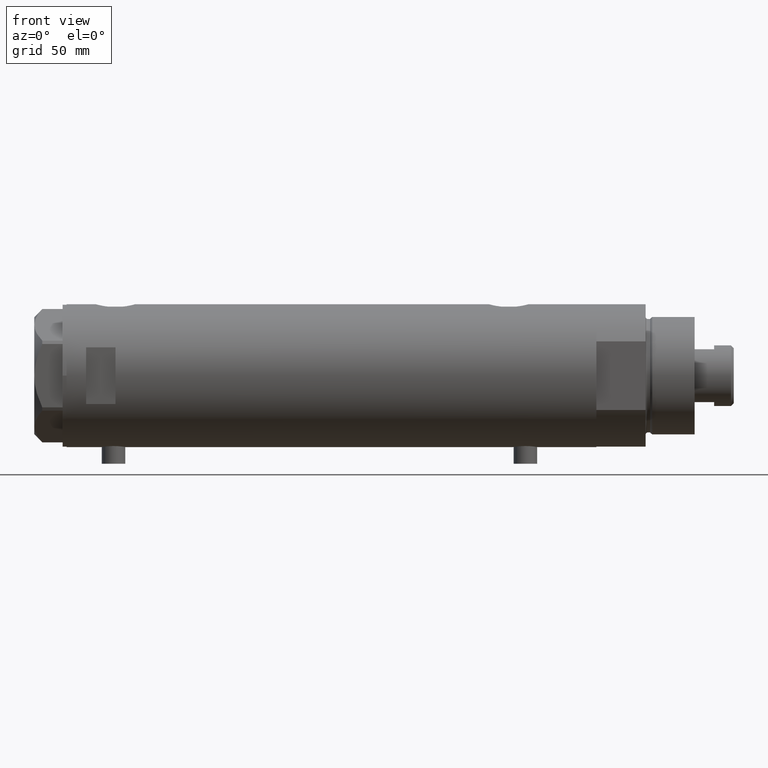
[diagram: clean part render]
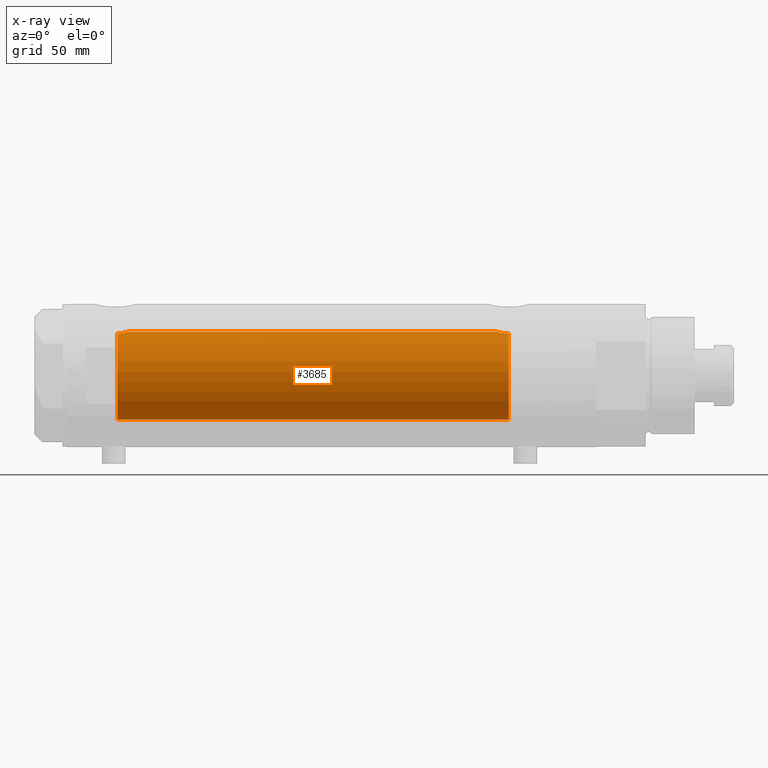
[diagram: x-ray — body ghosted, one internal face saturated and labeled with its STEP entity id]
A machine part, front view, then the same camera in x-ray: the body is ghosted and one INTERNAL B-rep face — a face not visible from any outside direction — is saturated and labeled: STEP entity #3685.
In plain terms, the highlighted cylindrical surface (partial cylindrical patch) has radius 22.5 mm, axis along (1, 0, -0).
Its self-contained STEP definition (entity closure, byte-faithful):
#32 = CARTESIAN_POINT ( 'NONE',  ( 21.53958216864941733, -6.503568251352485952, 109.3999999999999915 ) ) ;
#66 = DIRECTION ( 'NONE',  ( -1.000000000000000000, 0.000000000000000000, 0.000000000000000000 ) ) ;
#76 = CARTESIAN_POINT ( 'NONE',  ( 21.97180182460413889, -4.853116730831949610, 105.9398793933508642 ) ) ;
#137 = CARTESIAN_POINT ( 'NONE',  ( 21.53958216864941733, -6.503568251352485952, 109.3999999999999915 ) ) ;
#152 = LINE ( 'NONE', #3225, #1558 ) ;
#187 = CARTESIAN_POINT ( 'NONE',  ( -22.50000000000000355, 0.000000000000000000, -90.59999999999998010 ) ) ;
#244 = CARTESIAN_POINT ( 'NONE',  ( 0.000000000000000000, 0.000000000000000000, -90.59999999999998010 ) ) ;
#259 = CARTESIAN_POINT ( 'NONE',  ( 22.50000000000000355, 8.058593785575293352E-16, -84.01999999999998181 ) ) ;
#270 = DIRECTION ( 'NONE',  ( -0.000000000000000000, -0.000000000000000000, -1.000000000000000000 ) ) ;
#304 = CARTESIAN_POINT ( 'NONE',  ( 21.61760927586798431, -6.241696587716365485, -88.47279459237279298 ) ) ;
#370 = CARTESIAN_POINT ( 'NONE',  ( 21.80246547822149239, -5.562416037700062432, 106.8635862820582361 ) ) ;
#423 = CARTESIAN_POINT ( 'NONE',  ( 22.50000000000000355, 8.058593785575293352E-16, -84.01999999999998181 ) ) ;
#429 = DIRECTION ( 'NONE',  ( -0.000000000000000000, -0.000000000000000000, -1.000000000000000000 ) ) ;
#511 = VERTEX_POINT ( 'NONE', #137 ) ;
#594 = LINE ( 'NONE', #2627, #2563 ) ;
#622 = CARTESIAN_POINT ( 'NONE',  ( 22.25875518649490559, -3.305696985817205835, -84.89458010501985541 ) ) ;
#644 = DIRECTION ( 'NONE',  ( 0.000000000000000000, 0.000000000000000000, 1.000000000000000000 ) ) ;
#661 = CARTESIAN_POINT ( 'NONE',  ( 22.48448975507857384, -0.8627579744204254553, -84.07320172378659606 ) ) ;
#720 = ORIENTED_EDGE ( 'NONE', *, *, #3357, .F. ) ;
#747 = AXIS2_PLACEMENT_3D ( 'NONE', #244, #1992, #2282 ) ;
#838 = CIRCLE ( 'NONE', #4241, 22.50000000000000355 ) ;
#936 = DIRECTION ( 'NONE',  ( 1.000000000000000000, 0.000000000000000000, 0.000000000000000000 ) ) ;
#937 = CARTESIAN_POINT ( 'NONE',  ( 22.40278435593408091, -2.127100118045536892, -84.35850395174202276 ) ) ;
#955 = CARTESIAN_POINT ( 'NONE',  ( 21.71318796968428444, -5.899027407341884022, -87.67698536342957993 ) ) ;
#1003 = CARTESIAN_POINT ( 'NONE',  ( 22.43844456282249666, -1.716722304487073636, -84.23314599255652979 ) ) ;
#1024 = CARTESIAN_POINT ( 'NONE',  ( 21.65869182728109621, -6.096583454856811635, 107.8942047130795601 ) ) ;
#1046 = CARTESIAN_POINT ( 'NONE',  ( 21.70285280737213540, -5.939204755440065320, 107.5412343513558397 ) ) ;
#1060 = EDGE_CURVE ( 'NONE', #4130, #1711, #3133, .T. ) ;
#1135 = CARTESIAN_POINT ( 'NONE',  ( -22.50000000000000355, 0.000000000000000000, 109.3999999999999915 ) ) ;
#1207 = EDGE_CURVE ( 'NONE', #1555, #511, #2570, .T. ) ;
#1339 = CARTESIAN_POINT ( 'NONE',  ( 21.76737372098157763, -5.695831585513579043, -87.29847891606891608 ) ) ;
#1352 = AXIS2_PLACEMENT_3D ( 'NONE', #3166, #429, #66 ) ;
#1363 = CARTESIAN_POINT ( 'NONE',  ( 22.49690699366424695, -0.4310528819996864991, -84.03055249859411902 ) ) ;
#1367 = CARTESIAN_POINT ( 'NONE',  ( 22.50000000000000355, -0.3950131823107573270, 103.8200000000000074 ) ) ;
#1434 = CARTESIAN_POINT ( 'NONE',  ( 22.41838729966076826, -1.923945741267791609, 104.1045311859534195 ) ) ;
#1555 = VERTEX_POINT ( 'NONE', #2795 ) ;
#1558 = VECTOR ( 'NONE', #3995, 1000.000000000000000 ) ;
#1661 = VERTEX_POINT ( 'NONE', #1135 ) ;
#1696 = CARTESIAN_POINT ( 'NONE',  ( 22.44752031034920492, -1.547413406105163203, 104.0015621785797180 ) ) ;
#1711 = VERTEX_POINT ( 'NONE', #187 ) ;
#1723 = CARTESIAN_POINT ( 'NONE',  ( 22.03004750576872439, -4.584392313773037131, 105.6639649762145012 ) ) ;
#1770 = CYLINDRICAL_SURFACE ( 'NONE', #1352, 22.50000000000000355 ) ;
#1783 = CARTESIAN_POINT ( 'NONE',  ( 22.50000000000000355, 0.000000000000000000, 103.8199999999999932 ) ) ;
#1847 = VERTEX_POINT ( 'NONE', #423 ) ;
#1858 = ORIENTED_EDGE ( 'NONE', *, *, #2079, .T. ) ;
#1965 = CARTESIAN_POINT ( 'NONE',  ( 21.79602751566978824, -5.585535159907477620, -87.11520197735673321 ) ) ;
#1992 = DIRECTION ( 'NONE',  ( 0.000000000000000000, 0.000000000000000000, -1.000000000000000000 ) ) ;
#2012 = ORIENTED_EDGE ( 'NONE', *, *, #1060, .T. ) ;
#2051 = CARTESIAN_POINT ( 'NONE',  ( 21.85824266975972918, -5.341352339310155628, 106.5379574036161614 ) ) ;
#2079 = EDGE_CURVE ( 'NONE', #1555, #1847, #152, .T. ) ;
#2256 = CARTESIAN_POINT ( 'NONE',  ( 21.51635656889892800, -6.580000000000002736, -90.59999999999998010 ) ) ;
#2282 = DIRECTION ( 'NONE',  ( -1.000000000000000000, 0.000000000000000000, 0.000000000000000000 ) ) ;
#2389 = CARTESIAN_POINT ( 'NONE',  ( 21.55747828655794507, -6.444296957919021018, 109.0145250978095106 ) ) ;
#2404 = ORIENTED_EDGE ( 'NONE', *, *, #2422, .T. ) ;
#2422 = EDGE_CURVE ( 'NONE', #1661, #511, #838, .T. ) ;
#2479 = CARTESIAN_POINT ( 'NONE',  ( 22.11568811446340277, -4.143519122923664533, 105.2848050441608905 ) ) ;
#2563 = VECTOR ( 'NONE', #270, 1000.000000000000000 ) ;
#2570 = B_SPLINE_CURVE_WITH_KNOTS ( 'NONE', 3,
 ( #1783, #1367, #2820, #3149, #1696, #1434, #3512, #3808, #2800, #3445, #3177, #4177, #2479, #1723, #76, #2051, #370, #1046, #1024, #4224, #2389, #32 ),
 .UNSPECIFIED., .F., .F.,
 ( 4, 2, 2, 2, 2, 2, 2, 2, 2, 2, 4 ),
 ( 0.000000000000000000, 0.001167753031984884466, 0.001751629547977323013, 0.002335506063969761126, 0.003503259095954651663, 0.004087135611947107991, 0.004671012127939563885, 0.005838765159924475673, 0.007006518191909386593, 0.008174271223894297514, 0.009342024255879211037 ),
 .UNSPECIFIED. ) ;
#2591 = ORIENTED_EDGE ( 'NONE', *, *, #1207, .F. ) ;
#2627 = CARTESIAN_POINT ( 'NONE',  ( -22.50000000000000355, 0.000000000000000000, 135.4000000000000057 ) ) ;
#2660 = CARTESIAN_POINT ( 'NONE',  ( 22.31324851815826094, -2.920315458573307321, -84.68792883542266736 ) ) ;
#2681 = CARTESIAN_POINT ( 'NONE',  ( 21.88647530142791808, -5.220320393727287289, -86.58868086085045945 ) ) ;
#2704 = CARTESIAN_POINT ( 'NONE',  ( 21.85557760450272013, -5.347779544816336994, -86.76030284772028267 ) ) ;
#2760 = FACE_OUTER_BOUND ( 'NONE', #4122, .T. ) ;
#2795 = CARTESIAN_POINT ( 'NONE',  ( 22.50000000000000355, 0.000000000000000000, 103.8199999999999932 ) ) ;
#2800 = CARTESIAN_POINT ( 'NONE',  ( 22.30010606974974863, -3.011418659624944372, 104.5367890168579663 ) ) ;
#2806 = ORIENTED_EDGE ( 'NONE', *, *, #3138, .F. ) ;
#2820 = CARTESIAN_POINT ( 'NONE',  ( 22.48961206562542259, -0.7836756559690466473, 103.8552765327437442 ) ) ;
#2991 = CARTESIAN_POINT ( 'NONE',  ( 21.51635656889892800, -6.580000000000002736, -90.59999999999998010 ) ) ;
#3032 = CARTESIAN_POINT ( 'NONE',  ( 22.50000000000000711, -0.2154191524768910848, -84.01999999999998181 ) ) ;
#3078 = CARTESIAN_POINT ( 'NONE',  ( 21.51635656889893511, -6.580000000000002736, -90.16825681860746045 ) ) ;
#3133 = CIRCLE ( 'NONE', #747, 22.50000000000000355 ) ;
#3138 = EDGE_CURVE ( 'NONE', #1661, #1711, #594, .T. ) ;
#3149 = CARTESIAN_POINT ( 'NONE',  ( 22.45982135096091525, -1.357617207441327301, 103.9586442640378436 ) ) ;
#3166 = CARTESIAN_POINT ( 'NONE',  ( 0.000000000000000000, 0.000000000000000000, 135.4000000000000057 ) ) ;
#3177 = CARTESIAN_POINT ( 'NONE',  ( 22.19872433573119963, -3.673198495424855992, 104.9372314324827613 ) ) ;
#3225 = CARTESIAN_POINT ( 'NONE',  ( 22.50000000000000355, 2.755455298081545172E-15, 135.4000000000000057 ) ) ;
#3269 = CARTESIAN_POINT ( 'NONE',  ( 21.58054822171799714, -6.366927345060002352, -88.88402244069204983 ) ) ;
#3282 = B_SPLINE_CURVE_WITH_KNOTS ( 'NONE', 3,
 ( #2991, #3078, #3403, #3269, #304, #3762, #955, #1339, #1965, #2704, #2681, #4127, #3358, #3744, #3693, #622, #2660, #937, #1003, #3717, #661, #1363, #3032, #259 ),
 .UNSPECIFIED., .F., .F.,
 ( 4, 2, 2, 2, 2, 2, 2, 2, 2, 2, 2, 4 ),
 ( 0.01034583194474684824, 0.01163831905076679121, 0.01293080615678673592, 0.01357704970979672736, 0.01422329326280671880, 0.01486953681581670850, 0.01551578036882670167, 0.01680826747484668107, 0.01810075458086666048, 0.01939324168688664335, 0.02003948523989663652, 0.02068572879290662969 ),
 .UNSPECIFIED. ) ;
#3357 = EDGE_CURVE ( 'NONE', #4130, #1847, #3282, .T. ) ;
#3358 = CARTESIAN_POINT ( 'NONE',  ( 21.98210460142358968, -4.802207463187402325, -86.09652004334174080 ) ) ;
#3403 = CARTESIAN_POINT ( 'NONE',  ( 21.52981735982749711, -6.536420260328984710, -89.72962480407468888 ) ) ;
#3445 = CARTESIAN_POINT ( 'NONE',  ( 22.22503367403958663, -3.510871893734214932, 104.8315576783196548 ) ) ;
#3512 = CARTESIAN_POINT ( 'NONE',  ( 22.40145249794127125, -2.111617392236895263, 104.1649554348197455 ) ) ;
#3685 = ADVANCED_FACE ( 'NONE', ( #2760 ), #1770, .F. ) ;
#3693 = CARTESIAN_POINT ( 'NONE',  ( 22.14149984669489157, -4.016690124115201321, -85.37069324031261885 ) ) ;
#3717 = CARTESIAN_POINT ( 'NONE',  ( 22.47508397315214523, -1.079737406574094560, -84.10558251353130288 ) ) ;
#3743 = CARTESIAN_POINT ( 'NONE',  ( 0.000000000000000000, 0.000000000000000000, 109.3999999999999915 ) ) ;
#3744 = CARTESIAN_POINT ( 'NONE',  ( 22.07839819281284477, -4.346355962099932135, -85.64115912649135964 ) ) ;
#3762 = CARTESIAN_POINT ( 'NONE',  ( 21.68753676189998458, -5.992345198295746300, -87.87327232579065139 ) ) ;
#3808 = CARTESIAN_POINT ( 'NONE',  ( 22.34502592404423638, -2.661921217589550803, 104.3697586785211939 ) ) ;
#3995 = DIRECTION ( 'NONE',  ( -0.000000000000000000, -0.000000000000000000, -1.000000000000000000 ) ) ;
#4122 = EDGE_LOOP ( 'NONE', ( #2591, #1858, #720, #2012, #2806, #2404 ) ) ;
#4127 = CARTESIAN_POINT ( 'NONE',  ( 21.94965745907476773, -4.947937303812818044, -86.25715039555707619 ) ) ;
#4130 = VERTEX_POINT ( 'NONE', #2256 ) ;
#4177 = CARTESIAN_POINT ( 'NONE',  ( 22.14407575385478921, -3.989443360685411832, 105.1637256297126157 ) ) ;
#4224 = CARTESIAN_POINT ( 'NONE',  ( 21.58601844322714669, -6.349099877921651647, 108.6290481141031563 ) ) ;
#4241 = AXIS2_PLACEMENT_3D ( 'NONE', #3743, #644, #936 ) ;